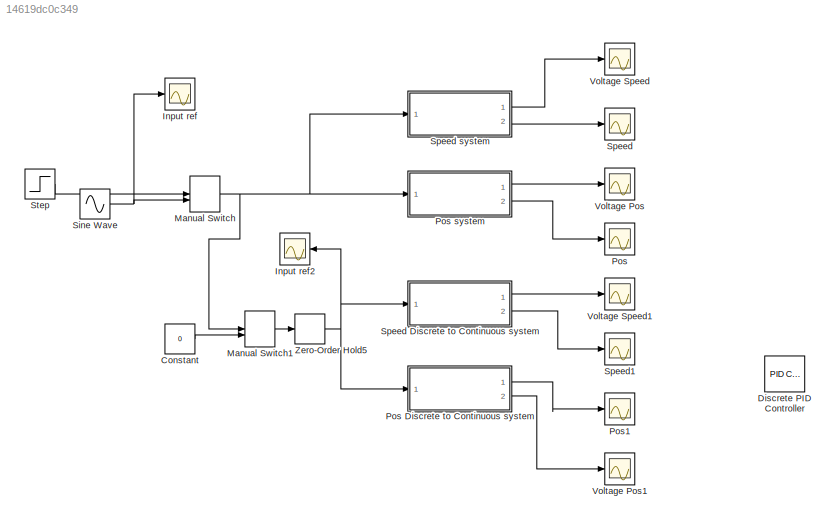
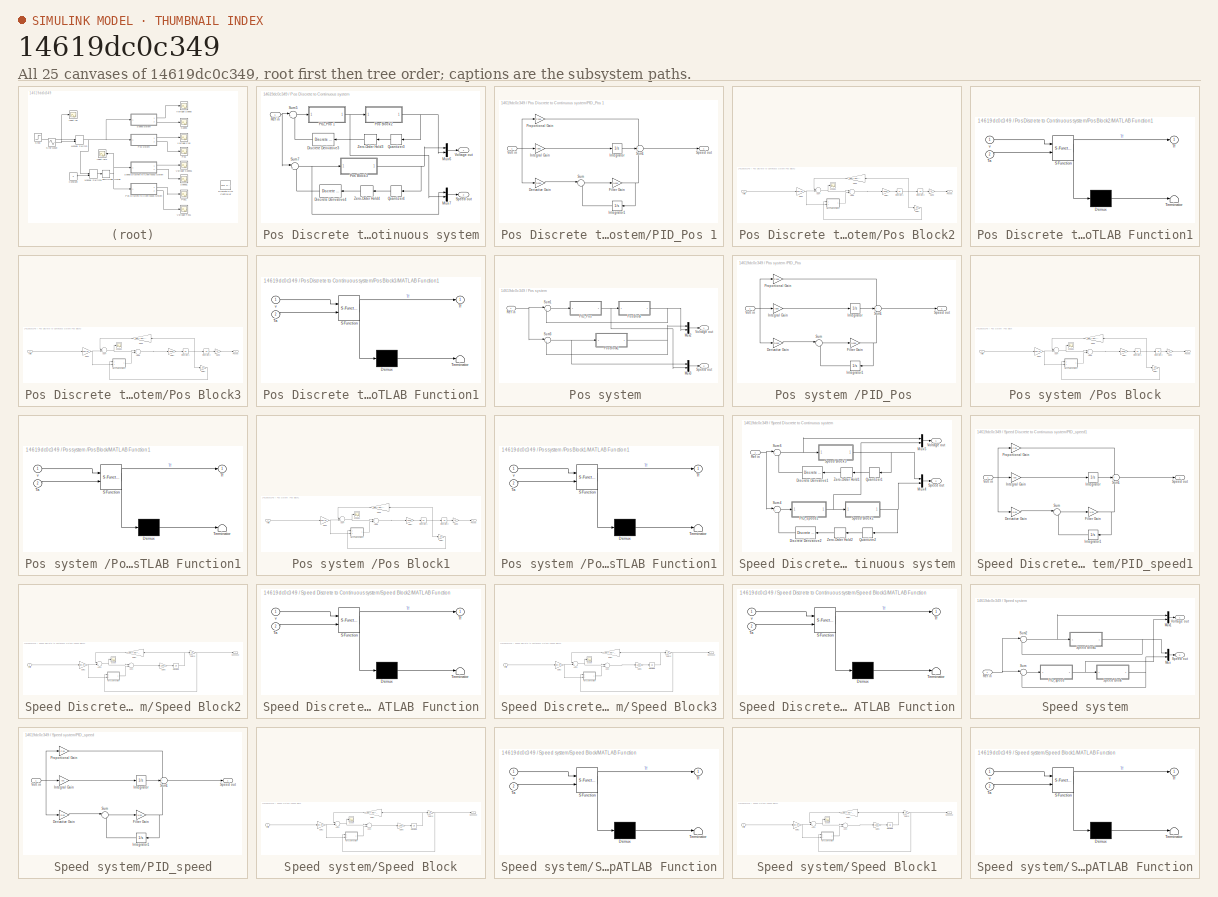
[diagram: thumbnail index - all 25 canvases of the model, root first then tree order]
MODEL slx_14619dc0c349
KIND model
CONFIG AbsTol = auto
CONFIG EnableMultiTasking = off
CONFIG FixedStep = auto
CONFIG MaxStep = auto
CONFIG MinStep = auto
CONFIG RelTol = 1e-3
CONFIG SampleTimeConstraint = Unconstrained
CONFIG Solver = VariableStepAuto
CONFIG SolverName = VariableStepAuto
CONFIG StartTime = 0.0
CONFIG StopTime = 10
BLOCK [Constant] Constant
  Value = 0
BLOCK [Reference] Discrete PID Controller  REF=simulink/Continuous/PID Controller
  Ports = [1, 1]
  SourceBlock = simulink/Continuous/PID Controller
  SourceType = PID 1dof
BLOCK [Scope] Input ref
  NumInputPorts = 1
  Ports = [1]
  ScopeSpecificationString = Simulink.scopes.TimeScopeBlockCfg('CurrentConfiguration', extmgr.ConfigurationSet(extmgr.Configuration('Core','General UI',true),extmgr.Configuration('Core','Source UI',true),extmgr.Configuration('Sources','WiredSimulink',true,'DataLoggingVariableName','ScopeData6'),extmgr.Configuration('Visuals','Time Domain',true,'SerializedDisplays',{struct('MinYLimReal','-1.38675','MaxYLimReal','12.48071','YLa...<+1402ch>
BLOCK [Scope] Input ref2
  NumInputPorts = 1
  Ports = [1]
  ScopeSpecificationString = Simulink.scopes.TimeScopeBlockCfg('CurrentConfiguration', extmgr.ConfigurationSet(extmgr.Configuration('Core','General UI',true),extmgr.Configuration('Core','Source UI',true),extmgr.Configuration('Sources','WiredSimulink',true,'DataLoggingVariableName','ScopeData12'),extmgr.Configuration('Visuals','Time Domain',true,'SerializedDisplays',{struct('MinYLimReal','-1.68572','MaxYLimReal','15.17148','YL...<+1380ch>
BLOCK [ManualSwitch] Manual Switch
  CurrentSetting = 0
BLOCK [ManualSwitch] Manual Switch1
  CurrentSetting = 0
BLOCK [Scope] Pos
  NumInputPorts = 1
  Ports = [1]
  ScopeSpecificationString = Simulink.scopes.TimeScopeBlockCfg('CurrentConfiguration', extmgr.ConfigurationSet(extmgr.Configuration('Core','General UI',true),extmgr.Configuration('Core','Source UI',true),extmgr.Configuration('Sources','WiredSimulink',true,'DataLoggingVariableName','ScopeData3'),extmgr.Configuration('Visuals','Time Domain',true,'SerializedDisplays',{struct('MinYLimReal','-0.3242','MaxYLimReal','2.91784','YLabe...<+1379ch>
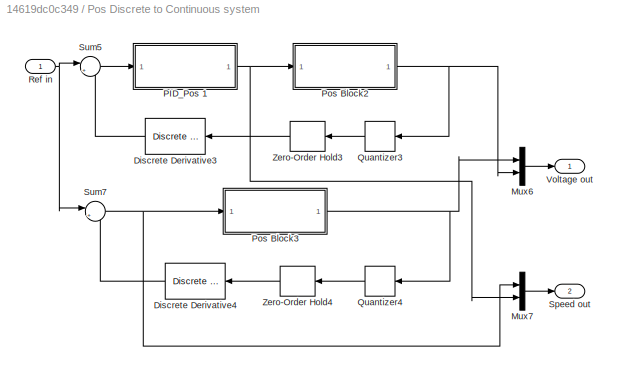
BLOCK [SubSystem] Pos Discrete to Continuous system
  Ports = [1, 2]
  RequestExecContextInheritance = off
  Variant = off
BLOCK [Reference] Pos Discrete to Continuous system/Discrete Derivative3  REF=simulink/Discrete/Discrete Derivative
  Ports = [1, 1]
  SourceBlock = simulink/Discrete/Discrete Derivative
  SourceType = Discrete Derivative
BLOCK [Reference] Pos Discrete to Continuous system/Discrete Derivative4  REF=simulink/Discrete/Discrete Derivative
  Ports = [1, 1]
  SourceBlock = simulink/Discrete/Discrete Derivative
  SourceType = Discrete Derivative
BLOCK [Mux] Pos Discrete to Continuous system/Mux6
  DisplayOption = bar
  Inputs = 2
  Ports = [2, 1]
BLOCK [Mux] Pos Discrete to Continuous system/Mux7
  DisplayOption = bar
  Inputs = 2
  Ports = [2, 1]
BLOCK [SubSystem] Pos Discrete to Continuous system/PID_Pos 1
  Ports = [1, 1]
  RequestExecContextInheritance = off
  Variant = off
BLOCK [Gain] Pos Discrete to Continuous system/PID_Pos 1/Derivative Gain
  Gain = Dpos
  OutDataTypeStr = Inherit: Inherit via internal rule
  ParamDataTypeStr = Inherit: Inherit via internal rule
  SaturateOnIntegerOverflow = off
BLOCK [Gain] Pos Discrete to Continuous system/PID_Pos 1/Filter Gain
  Gain = Npos
  OutDataTypeStr = Inherit: Inherit via internal rule
  ParamDataTypeStr = Inherit: Inherit via internal rule
  SaturateOnIntegerOverflow = off
BLOCK [Gain] Pos Discrete to Continuous system/PID_Pos 1/Integral Gain
  Gain = Ipos
  OutDataTypeStr = Inherit: Inherit via internal rule
  ParamDataTypeStr = Inherit: Inherit via internal rule
  SaturateOnIntegerOverflow = off
BLOCK [Integrator] Pos Discrete to Continuous system/PID_Pos 1/Integrator
  Ports = [1, 1]
BLOCK [Integrator] Pos Discrete to Continuous system/PID_Pos 1/Integrator1
  Ports = [1, 1]
BLOCK [Gain] Pos Discrete to Continuous system/PID_Pos 1/Proportional Gain
  Gain = Ppos
  OutDataTypeStr = Inherit: Inherit via internal rule
  ParamDataTypeStr = Inherit: Inherit via internal rule
  SaturateOnIntegerOverflow = off
BLOCK [Outport] Pos Discrete to Continuous system/PID_Pos 1/Speed out
  IconDisplay = Port number
BLOCK [Sum] Pos Discrete to Continuous system/PID_Pos 1/Sum
  IconShape = round
  InputSameDT = off
  Inputs = |+-
  OutDataTypeStr = Inherit: Inherit via internal rule
  Ports = [2, 1]
  SaturateOnIntegerOverflow = off
BLOCK [Sum] Pos Discrete to Continuous system/PID_Pos 1/Sum1
  IconShape = round
  InputSameDT = off
  Inputs = +++
  OutDataTypeStr = Inherit: Inherit via internal rule
  Ports = [3, 1]
  SaturateOnIntegerOverflow = off
BLOCK [Inport] Pos Discrete to Continuous system/PID_Pos 1/Volt in
  IconDisplay = Port number
BLOCK [SubSystem] Pos Discrete to Continuous system/Pos Block2
  Ports = [1, 1]
  RequestExecContextInheritance = off
  Variant = off
BLOCK [Sum] Pos Discrete to Continuous system/Pos Block2/Add4
  InputSameDT = off
  Inputs = -+
  OutDataTypeStr = Inherit: Inherit via internal rule
  Ports = [2, 1]
  SaturateOnIntegerOverflow = off
BLOCK [Sum] Pos Discrete to Continuous system/Pos Block2/Add5
  InputSameDT = off
  Inputs = +-
  OutDataTypeStr = Inherit: Inherit via internal rule
  Ports = [2, 1]
  SaturateOnIntegerOverflow = off
BLOCK [Gain] Pos Discrete to Continuous system/Pos Block2/Gain1
  Gain = 1/n
  OutDataTypeStr = Inherit: Inherit via internal rule
  ParamDataTypeStr = Inherit: Inherit via internal rule
  SaturateOnIntegerOverflow = off
BLOCK [Gain] Pos Discrete to Continuous system/Pos Block2/Gain4
  Gain = Km/R
  OutDataTypeStr = Inherit: Inherit via internal rule
  ParamDataTypeStr = Inherit: Inherit via internal rule
  SaturateOnIntegerOverflow = off
BLOCK [Gain] Pos Discrete to Continuous system/Pos Block2/Gain6
  Gain = dm+ Km*Kemf/R
  OutDataTypeStr = Inherit: Inherit via internal rule
  ParamDataTypeStr = Inherit: Inherit via internal rule
  SaturateOnIntegerOverflow = off
BLOCK [Gain] Pos Discrete to Continuous system/Pos Block2/Gain7
  Gain = 1/Jeq
  OutDataTypeStr = Inherit: Inherit via internal rule
  ParamDataTypeStr = Inherit: Inherit via internal rule
  SaturateOnIntegerOverflow = off
BLOCK [Gain] Pos Discrete to Continuous system/Pos Block2/Gain8
  Gain = 1/n
  OutDataTypeStr = Inherit: Inherit via internal rule
  ParamDataTypeStr = Inherit: Inherit via internal rule
  SaturateOnIntegerOverflow = off
BLOCK [Integrator] Pos Discrete to Continuous system/Pos Block2/Integrator1
  Ports = [1, 1]
BLOCK [Integrator] Pos Discrete to Continuous system/Pos Block2/Integrator2
  Ports = [1, 1]
BLOCK [SubSystem] Pos Discrete to Continuous system/Pos Block2/MATLAB Function1
  ErrorFcn = Stateflow.Translate.translate
  PermitHierarchicalResolution = ExplicitOnly
  Ports = [2, 1]
  RequestExecContextInheritance = off
  SFBlockType = MATLAB Function
  TreatAsAtomicUnit = on
  Variant = off
BLOCK [Demux] Pos Discrete to Continuous system/Pos Block2/MATLAB Function1/ Demux 
  Outputs = 1
  Ports = [1, 1]
BLOCK [S-Function] Pos Discrete to Continuous system/Pos Block2/MATLAB Function1/ SFunction 
  EnableBusSupport = on
  FunctionName = sf_sfun
  PortCounts = [2 2]
  Ports = [2, 2]
  SFcnIsStateOwnerBlock = off
  SFunctionDeploymentMode = off
  Tag = Stateflow S-Function SimLab3 5
BLOCK [Terminator] Pos Discrete to Continuous system/Pos Block2/MATLAB Function1/ Terminator 
BLOCK [Inport] Pos Discrete to Continuous system/Pos Block2/MATLAB Function1/Ta
  IconDisplay = Port number
  Port = 2
BLOCK [Outport] Pos Discrete to Continuous system/Pos Block2/MATLAB Function1/Tf
  IconDisplay = Port number
BLOCK [Inport] Pos Discrete to Continuous system/Pos Block2/MATLAB Function1/v
  IconDisplay = Port number
BLOCK [Outport] Pos Discrete to Continuous system/Pos Block2/Pos out 
  IconDisplay = Port number
BLOCK [Scope] Pos Discrete to Continuous system/Pos Block2/Scope1
  NumInputPorts = 1
  Ports = [1]
  ScopeSpecificationString = C++SS(StrPVP('SaveName','ScopeData1'),StrPVP('SaveName','ScopeData1'),StrPVP('LimitDataPoints','on'),StrPVP('DataFormat','Array'),StrPVP('Decimation','1'),StrPVP('BlockParamSampleInput','off'))  <repeated x4 — deduplicated; at blocks: Scope1>
BLOCK [Inport] Pos Discrete to Continuous system/Pos Block2/Volt in
  IconDisplay = Port number
BLOCK [SubSystem] Pos Discrete to Continuous system/Pos Block3
  Ports = [1, 1]
  RequestExecContextInheritance = off
  Variant = off
BLOCK [Sum] Pos Discrete to Continuous system/Pos Block3/Add4
  InputSameDT = off
  Inputs = -+
  OutDataTypeStr = Inherit: Inherit via internal rule
  Ports = [2, 1]
  SaturateOnIntegerOverflow = off
BLOCK [Sum] Pos Discrete to Continuous system/Pos Block3/Add5
  InputSameDT = off
  Inputs = +-
  OutDataTypeStr = Inherit: Inherit via internal rule
  Ports = [2, 1]
  SaturateOnIntegerOverflow = off
BLOCK [Gain] Pos Discrete to Continuous system/Pos Block3/Gain1
  Gain = 1/n
  OutDataTypeStr = Inherit: Inherit via internal rule
  ParamDataTypeStr = Inherit: Inherit via internal rule
  SaturateOnIntegerOverflow = off
BLOCK [Gain] Pos Discrete to Continuous system/Pos Block3/Gain4
  Gain = Km/R
  OutDataTypeStr = Inherit: Inherit via internal rule
  ParamDataTypeStr = Inherit: Inherit via internal rule
  SaturateOnIntegerOverflow = off
BLOCK [Gain] Pos Discrete to Continuous system/Pos Block3/Gain6
  Gain = dm+ Km*Kemf/R
  OutDataTypeStr = Inherit: Inherit via internal rule
  ParamDataTypeStr = Inherit: Inherit via internal rule
  SaturateOnIntegerOverflow = off
BLOCK [Gain] Pos Discrete to Continuous system/Pos Block3/Gain7
  Gain = 1/Jeq
  OutDataTypeStr = Inherit: Inherit via internal rule
  ParamDataTypeStr = Inherit: Inherit via internal rule
  SaturateOnIntegerOverflow = off
BLOCK [Gain] Pos Discrete to Continuous system/Pos Block3/Gain8
  Gain = 1/n
  OutDataTypeStr = Inherit: Inherit via internal rule
  ParamDataTypeStr = Inherit: Inherit via internal rule
  SaturateOnIntegerOverflow = off
BLOCK [Integrator] Pos Discrete to Continuous system/Pos Block3/Integrator1
  Ports = [1, 1]
BLOCK [Integrator] Pos Discrete to Continuous system/Pos Block3/Integrator2
  Ports = [1, 1]
BLOCK [SubSystem] Pos Discrete to Continuous system/Pos Block3/MATLAB Function1
  ErrorFcn = Stateflow.Translate.translate
  PermitHierarchicalResolution = ExplicitOnly
  Ports = [2, 1]
  RequestExecContextInheritance = off
  SFBlockType = MATLAB Function
  TreatAsAtomicUnit = on
  Variant = off
BLOCK [Demux] Pos Discrete to Continuous system/Pos Block3/MATLAB Function1/ Demux 
  Outputs = 1
  Ports = [1, 1]
BLOCK [S-Function] Pos Discrete to Continuous system/Pos Block3/MATLAB Function1/ SFunction 
  EnableBusSupport = on
  FunctionName = sf_sfun
  PortCounts = [2 2]
  Ports = [2, 2]
  SFcnIsStateOwnerBlock = off
  SFunctionDeploymentMode = off
  Tag = Stateflow S-Function SimLab3 6
BLOCK [Terminator] Pos Discrete to Continuous system/Pos Block3/MATLAB Function1/ Terminator 
BLOCK [Inport] Pos Discrete to Continuous system/Pos Block3/MATLAB Function1/Ta
  IconDisplay = Port number
  Port = 2
BLOCK [Outport] Pos Discrete to Continuous system/Pos Block3/MATLAB Function1/Tf
  IconDisplay = Port number
BLOCK [Inport] Pos Discrete to Continuous system/Pos Block3/MATLAB Function1/v
  IconDisplay = Port number
BLOCK [Outport] Pos Discrete to Continuous system/Pos Block3/Pos out 
  IconDisplay = Port number
BLOCK [Scope] Pos Discrete to Continuous system/Pos Block3/Scope1
  NumInputPorts = 1
  Ports = [1]
BLOCK [Inport] Pos Discrete to Continuous system/Pos Block3/Volt in
  IconDisplay = Port number
BLOCK [Quantizer] Pos Discrete to Continuous system/Quantizer3
  LinearizeAsGain = off
  QuantizationInterval = Pulses
  SampleTime = Ts
BLOCK [Quantizer] Pos Discrete to Continuous system/Quantizer4
  LinearizeAsGain = off
  QuantizationInterval = Pulses
  SampleTime = Ts
BLOCK [Inport] Pos Discrete to Continuous system/Ref in
  IconDisplay = Port number
BLOCK [Outport] Pos Discrete to Continuous system/Speed out
  IconDisplay = Port number
  Port = 2
BLOCK [Sum] Pos Discrete to Continuous system/Sum5
  IconShape = round
  InputSameDT = off
  Inputs = |++
  OutDataTypeStr = Inherit: Inherit via internal rule
  Ports = [2, 1]
  SaturateOnIntegerOverflow = off
BLOCK [Sum] Pos Discrete to Continuous system/Sum7
  IconShape = round
  InputSameDT = off
  Inputs = |++
  OutDataTypeStr = Inherit: Inherit via internal rule
  Ports = [2, 1]
  SaturateOnIntegerOverflow = off
BLOCK [Outport] Pos Discrete to Continuous system/Voltage out
  IconDisplay = Port number
BLOCK [ZeroOrderHold] Pos Discrete to Continuous system/Zero-Order Hold3
  SampleTime = Ts
BLOCK [ZeroOrderHold] Pos Discrete to Continuous system/Zero-Order Hold4
  SampleTime = Ts
BLOCK [SubSystem] Pos system 
  Ports = [1, 2]
  RequestExecContextInheritance = off
  Variant = off
BLOCK [Mux] Pos system /Mux2
  DisplayOption = bar
  Inputs = 2
  Ports = [2, 1]
BLOCK [Mux] Pos system /Mux3
  DisplayOption = bar
  Inputs = 2
  Ports = [2, 1]
BLOCK [SubSystem] Pos system /PID_Pos 
  Ports = [1, 1]
  RequestExecContextInheritance = off
  Variant = off
BLOCK [Gain] Pos system /PID_Pos /Derivative Gain
  Gain = Dpos
  OutDataTypeStr = Inherit: Inherit via internal rule
  ParamDataTypeStr = Inherit: Inherit via internal rule
  SaturateOnIntegerOverflow = off
BLOCK [Gain] Pos system /PID_Pos /Filter Gain
  Gain = Npos
  OutDataTypeStr = Inherit: Inherit via internal rule
  ParamDataTypeStr = Inherit: Inherit via internal rule
  SaturateOnIntegerOverflow = off
BLOCK [Gain] Pos system /PID_Pos /Integral Gain
  Gain = Ipos
  OutDataTypeStr = Inherit: Inherit via internal rule
  ParamDataTypeStr = Inherit: Inherit via internal rule
  SaturateOnIntegerOverflow = off
BLOCK [Integrator] Pos system /PID_Pos /Integrator
  Ports = [1, 1]
BLOCK [Integrator] Pos system /PID_Pos /Integrator1
  Ports = [1, 1]
BLOCK [Gain] Pos system /PID_Pos /Proportional Gain
  Gain = Ppos
  OutDataTypeStr = Inherit: Inherit via internal rule
  ParamDataTypeStr = Inherit: Inherit via internal rule
  SaturateOnIntegerOverflow = off
BLOCK [Outport] Pos system /PID_Pos /Speed out
  IconDisplay = Port number
BLOCK [Sum] Pos system /PID_Pos /Sum
  IconShape = round
  InputSameDT = off
  Inputs = |+-
  OutDataTypeStr = Inherit: Inherit via internal rule
  Ports = [2, 1]
  SaturateOnIntegerOverflow = off
BLOCK [Sum] Pos system /PID_Pos /Sum1
  IconShape = round
  InputSameDT = off
  Inputs = +++
  OutDataTypeStr = Inherit: Inherit via internal rule
  Ports = [3, 1]
  SaturateOnIntegerOverflow = off
BLOCK [Inport] Pos system /PID_Pos /Volt in
  IconDisplay = Port number
BLOCK [SubSystem] Pos system /Pos Block
  Ports = [1, 1]
  RequestExecContextInheritance = off
  Variant = off
BLOCK [Sum] Pos system /Pos Block/Add4
  InputSameDT = off
  Inputs = -+
  OutDataTypeStr = Inherit: Inherit via internal rule
  Ports = [2, 1]
  SaturateOnIntegerOverflow = off
BLOCK [Sum] Pos system /Pos Block/Add5
  InputSameDT = off
  Inputs = +-
  OutDataTypeStr = Inherit: Inherit via internal rule
  Ports = [2, 1]
  SaturateOnIntegerOverflow = off
BLOCK [Gain] Pos system /Pos Block/Gain1
  Gain = 1/n
  OutDataTypeStr = Inherit: Inherit via internal rule
  ParamDataTypeStr = Inherit: Inherit via internal rule
  SaturateOnIntegerOverflow = off
BLOCK [Gain] Pos system /Pos Block/Gain4
  Gain = Km/R
  OutDataTypeStr = Inherit: Inherit via internal rule
  ParamDataTypeStr = Inherit: Inherit via internal rule
  SaturateOnIntegerOverflow = off
BLOCK [Gain] Pos system /Pos Block/Gain6
  Gain = dm+ Km*Kemf/R
  OutDataTypeStr = Inherit: Inherit via internal rule
  ParamDataTypeStr = Inherit: Inherit via internal rule
  SaturateOnIntegerOverflow = off
BLOCK [Gain] Pos system /Pos Block/Gain7
  Gain = 1/Jeq
  OutDataTypeStr = Inherit: Inherit via internal rule
  ParamDataTypeStr = Inherit: Inherit via internal rule
  SaturateOnIntegerOverflow = off
BLOCK [Gain] Pos system /Pos Block/Gain8
  Gain = 1/n
  OutDataTypeStr = Inherit: Inherit via internal rule
  ParamDataTypeStr = Inherit: Inherit via internal rule
  SaturateOnIntegerOverflow = off
BLOCK [Integrator] Pos system /Pos Block/Integrator1
  Ports = [1, 1]
BLOCK [Integrator] Pos system /Pos Block/Integrator2
  Ports = [1, 1]
BLOCK [SubSystem] Pos system /Pos Block/MATLAB Function1
  ErrorFcn = Stateflow.Translate.translate
  PermitHierarchicalResolution = ExplicitOnly
  Ports = [2, 1]
  RequestExecContextInheritance = off
  SFBlockType = MATLAB Function
  TreatAsAtomicUnit = on
  Variant = off
BLOCK [Demux] Pos system /Pos Block/MATLAB Function1/ Demux 
  Outputs = 1
  Ports = [1, 1]
BLOCK [S-Function] Pos system /Pos Block/MATLAB Function1/ SFunction 
  EnableBusSupport = on
  FunctionName = sf_sfun
  PortCounts = [2 2]
  Ports = [2, 2]
  SFcnIsStateOwnerBlock = off
  SFunctionDeploymentMode = off
  Tag = Stateflow S-Function SimLab3 1
BLOCK [Terminator] Pos system /Pos Block/MATLAB Function1/ Terminator 
BLOCK [Inport] Pos system /Pos Block/MATLAB Function1/Ta
  IconDisplay = Port number
  Port = 2
BLOCK [Outport] Pos system /Pos Block/MATLAB Function1/Tf
  IconDisplay = Port number
BLOCK [Inport] Pos system /Pos Block/MATLAB Function1/v
  IconDisplay = Port number
BLOCK [Outport] Pos system /Pos Block/Pos out 
  IconDisplay = Port number
BLOCK [Scope] Pos system /Pos Block/Scope1
  NumInputPorts = 1
  Ports = [1]
BLOCK [Inport] Pos system /Pos Block/Volt in
  IconDisplay = Port number
BLOCK [SubSystem] Pos system /Pos Block1
  Ports = [1, 1]
  RequestExecContextInheritance = off
  Variant = off
BLOCK [Sum] Pos system /Pos Block1/Add4
  InputSameDT = off
  Inputs = -+
  OutDataTypeStr = Inherit: Inherit via internal rule
  Ports = [2, 1]
  SaturateOnIntegerOverflow = off
BLOCK [Sum] Pos system /Pos Block1/Add5
  InputSameDT = off
  Inputs = +-
  OutDataTypeStr = Inherit: Inherit via internal rule
  Ports = [2, 1]
  SaturateOnIntegerOverflow = off
BLOCK [Gain] Pos system /Pos Block1/Gain1
  Gain = 1/n
  OutDataTypeStr = Inherit: Inherit via internal rule
  ParamDataTypeStr = Inherit: Inherit via internal rule
  SaturateOnIntegerOverflow = off
BLOCK [Gain] Pos system /Pos Block1/Gain4
  Gain = Km/R
  OutDataTypeStr = Inherit: Inherit via internal rule
  ParamDataTypeStr = Inherit: Inherit via internal rule
  SaturateOnIntegerOverflow = off
BLOCK [Gain] Pos system /Pos Block1/Gain6
  Gain = dm+ Km*Kemf/R
  OutDataTypeStr = Inherit: Inherit via internal rule
  ParamDataTypeStr = Inherit: Inherit via internal rule
  SaturateOnIntegerOverflow = off
BLOCK [Gain] Pos system /Pos Block1/Gain7
  Gain = 1/Jeq
  OutDataTypeStr = Inherit: Inherit via internal rule
  ParamDataTypeStr = Inherit: Inherit via internal rule
  SaturateOnIntegerOverflow = off
BLOCK [Gain] Pos system /Pos Block1/Gain8
  Gain = 1/n
  OutDataTypeStr = Inherit: Inherit via internal rule
  ParamDataTypeStr = Inherit: Inherit via internal rule
  SaturateOnIntegerOverflow = off
BLOCK [Integrator] Pos system /Pos Block1/Integrator1
  Ports = [1, 1]
BLOCK [Integrator] Pos system /Pos Block1/Integrator2
  Ports = [1, 1]
BLOCK [SubSystem] Pos system /Pos Block1/MATLAB Function1
  ErrorFcn = Stateflow.Translate.translate
  PermitHierarchicalResolution = ExplicitOnly
  Ports = [2, 1]
  RequestExecContextInheritance = off
  SFBlockType = MATLAB Function
  TreatAsAtomicUnit = on
  Variant = off
BLOCK [Demux] Pos system /Pos Block1/MATLAB Function1/ Demux 
  Outputs = 1
  Ports = [1, 1]
BLOCK [S-Function] Pos system /Pos Block1/MATLAB Function1/ SFunction 
  EnableBusSupport = on
  FunctionName = sf_sfun
  PortCounts = [2 2]
  Ports = [2, 2]
  SFcnIsStateOwnerBlock = off
  SFunctionDeploymentMode = off
  Tag = Stateflow S-Function SimLab3 4
BLOCK [Terminator] Pos system /Pos Block1/MATLAB Function1/ Terminator 
BLOCK [Inport] Pos system /Pos Block1/MATLAB Function1/Ta
  IconDisplay = Port number
  Port = 2
BLOCK [Outport] Pos system /Pos Block1/MATLAB Function1/Tf
  IconDisplay = Port number
BLOCK [Inport] Pos system /Pos Block1/MATLAB Function1/v
  IconDisplay = Port number
BLOCK [Outport] Pos system /Pos Block1/Pos out 
  IconDisplay = Port number
BLOCK [Scope] Pos system /Pos Block1/Scope1
  NumInputPorts = 1
  Ports = [1]
BLOCK [Inport] Pos system /Pos Block1/Volt in
  IconDisplay = Port number
BLOCK [Inport] Pos system /Ref in
  IconDisplay = Port number
BLOCK [Outport] Pos system /Speed out
  IconDisplay = Port number
  Port = 2
BLOCK [Sum] Pos system /Sum1
  IconShape = round
  InputSameDT = off
  Inputs = |++
  OutDataTypeStr = Inherit: Inherit via internal rule
  Ports = [2, 1]
  SaturateOnIntegerOverflow = off
BLOCK [Sum] Pos system /Sum3
  IconShape = round
  InputSameDT = off
  Inputs = |++
  OutDataTypeStr = Inherit: Inherit via internal rule
  Ports = [2, 1]
  SaturateOnIntegerOverflow = off
BLOCK [Outport] Pos system /Voltage out
  IconDisplay = Port number
BLOCK [Scope] Pos1
  NumInputPorts = 1
  Ports = [1]
  ScopeSpecificationString = Simulink.scopes.TimeScopeBlockCfg('CurrentConfiguration', extmgr.ConfigurationSet(extmgr.Configuration('Core','General UI',true),extmgr.Configuration('Core','Source UI',true),extmgr.Configuration('Sources','WiredSimulink',true,'DataLoggingVariableName','ScopeData8'),extmgr.Configuration('Visuals','Time Domain',true,'SerializedDisplays',{struct('MinYLimReal','-19817594687.46274','MaxYLimReal','1783...<+1459ch>
BLOCK [Sin] Sine Wave
  Amplitude = Amplitude
  Frequency = Freq*10
  Ports = [0, 1]
  SampleTime = 0
BLOCK [Scope] Speed
  NumInputPorts = 1
  Ports = [1]
  ScopeSpecificationString = Simulink.scopes.TimeScopeBlockCfg('CurrentConfiguration', extmgr.ConfigurationSet(extmgr.Configuration('Core','General UI',true),extmgr.Configuration('Core','Source UI',true),extmgr.Configuration('Sources','WiredSimulink',true),extmgr.Configuration('Visuals','Time Domain',true,'SerializedDisplays',{struct('MinYLimReal','-2.652','MaxYLimReal','23.86797','YLabelReal','','MinYLimMag','0.00000','MaxYL...<+1395ch>
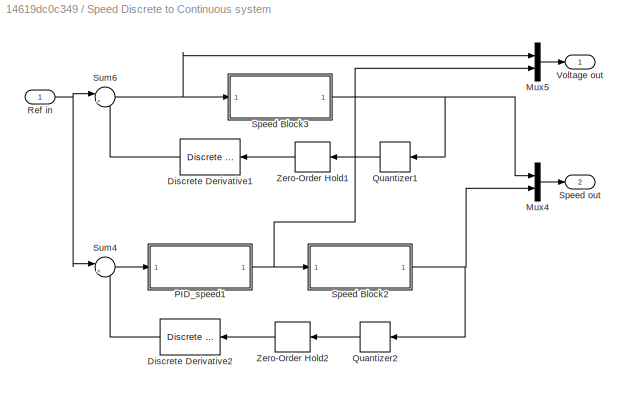
BLOCK [SubSystem] Speed Discrete to Continuous system
  Ports = [1, 2]
  RequestExecContextInheritance = off
  Variant = off
BLOCK [Reference] Speed Discrete to Continuous system/Discrete Derivative1  REF=simulink/Discrete/Discrete Derivative
  Ports = [1, 1]
  SourceBlock = simulink/Discrete/Discrete Derivative
  SourceType = Discrete Derivative
BLOCK [Reference] Speed Discrete to Continuous system/Discrete Derivative2  REF=simulink/Discrete/Discrete Derivative
  Ports = [1, 1]
  SourceBlock = simulink/Discrete/Discrete Derivative
  SourceType = Discrete Derivative
BLOCK [Mux] Speed Discrete to Continuous system/Mux4
  DisplayOption = bar
  Inputs = 2
  Ports = [2, 1]
BLOCK [Mux] Speed Discrete to Continuous system/Mux5
  DisplayOption = bar
  Inputs = 2
  Ports = [2, 1]
BLOCK [SubSystem] Speed Discrete to Continuous system/PID_speed1
  Ports = [1, 1]
  RequestExecContextInheritance = off
  Variant = off
BLOCK [Gain] Speed Discrete to Continuous system/PID_speed1/Derivative Gain
  Gain = Dsp
  OutDataTypeStr = Inherit: Inherit via internal rule
  ParamDataTypeStr = Inherit: Inherit via internal rule
  SaturateOnIntegerOverflow = off
BLOCK [Gain] Speed Discrete to Continuous system/PID_speed1/Filter Gain
  Gain = Nsp
  OutDataTypeStr = Inherit: Inherit via internal rule
  ParamDataTypeStr = Inherit: Inherit via internal rule
  SaturateOnIntegerOverflow = off
BLOCK [Gain] Speed Discrete to Continuous system/PID_speed1/Integral Gain
  Gain = Isp
  OutDataTypeStr = Inherit: Inherit via internal rule
  ParamDataTypeStr = Inherit: Inherit via internal rule
  SaturateOnIntegerOverflow = off
BLOCK [Integrator] Speed Discrete to Continuous system/PID_speed1/Integrator
  Ports = [1, 1]
BLOCK [Integrator] Speed Discrete to Continuous system/PID_speed1/Integrator1
  Ports = [1, 1]
BLOCK [Gain] Speed Discrete to Continuous system/PID_speed1/Proportional Gain
  Gain = Psp
  OutDataTypeStr = Inherit: Inherit via internal rule
  ParamDataTypeStr = Inherit: Inherit via internal rule
  SaturateOnIntegerOverflow = off
BLOCK [Outport] Speed Discrete to Continuous system/PID_speed1/Speed out
  IconDisplay = Port number
BLOCK [Sum] Speed Discrete to Continuous system/PID_speed1/Sum
  IconShape = round
  InputSameDT = off
  Inputs = |+-
  OutDataTypeStr = Inherit: Inherit via internal rule
  Ports = [2, 1]
  SaturateOnIntegerOverflow = off
BLOCK [Sum] Speed Discrete to Continuous system/PID_speed1/Sum1
  IconShape = round
  InputSameDT = off
  Inputs = +++
  OutDataTypeStr = Inherit: Inherit via internal rule
  Ports = [3, 1]
  SaturateOnIntegerOverflow = off
BLOCK [Inport] Speed Discrete to Continuous system/PID_speed1/Volt in
  IconDisplay = Port number
BLOCK [Quantizer] Speed Discrete to Continuous system/Quantizer1
  LinearizeAsGain = off
  QuantizationInterval = Pulses
  SampleTime = Ts
BLOCK [Quantizer] Speed Discrete to Continuous system/Quantizer2
  LinearizeAsGain = off
  QuantizationInterval = Pulses
  SampleTime = Ts
BLOCK [Inport] Speed Discrete to Continuous system/Ref in
  IconDisplay = Port number
BLOCK [SubSystem] Speed Discrete to Continuous system/Speed Block2
  Ports = [1, 1]
  RequestExecContextInheritance = off
  Variant = off
BLOCK [Sum] Speed Discrete to Continuous system/Speed Block2/Add2
  InputSameDT = off
  Inputs = -+
  OutDataTypeStr = Inherit: Inherit via internal rule
  Ports = [2, 1]
  SaturateOnIntegerOverflow = off
BLOCK [Sum] Speed Discrete to Continuous system/Speed Block2/Add3
  InputSameDT = off
  Inputs = +-
  OutDataTypeStr = Inherit: Inherit via internal rule
  Ports = [2, 1]
  SaturateOnIntegerOverflow = off
BLOCK [Gain] Speed Discrete to Continuous system/Speed Block2/Gain10
  Gain = 1/n
  OutDataTypeStr = Inherit: Inherit via internal rule
  ParamDataTypeStr = Inherit: Inherit via internal rule
  SaturateOnIntegerOverflow = off
BLOCK [Gain] Speed Discrete to Continuous system/Speed Block2/Gain2
  Gain = Km/R
  OutDataTypeStr = Inherit: Inherit via internal rule
  ParamDataTypeStr = Inherit: Inherit via internal rule
  SaturateOnIntegerOverflow = off
BLOCK [Gain] Speed Discrete to Continuous system/Speed Block2/Gain3
  Gain = dm+ Km*Kemf/R
  OutDataTypeStr = Inherit: Inherit via internal rule
  ParamDataTypeStr = Inherit: Inherit via internal rule
  SaturateOnIntegerOverflow = off
BLOCK [Gain] Speed Discrete to Continuous system/Speed Block2/Gain5
  Gain = 1/Jeq
  OutDataTypeStr = Inherit: Inherit via internal rule
  ParamDataTypeStr = Inherit: Inherit via internal rule
  SaturateOnIntegerOverflow = off
BLOCK [Integrator] Speed Discrete to Continuous system/Speed Block2/Integrator3
  Ports = [1, 1]
BLOCK [SubSystem] Speed Discrete to Continuous system/Speed Block2/MATLAB Function
  ErrorFcn = Stateflow.Translate.translate
  PermitHierarchicalResolution = ExplicitOnly
  Ports = [2, 1]
  RequestExecContextInheritance = off
  SFBlockType = MATLAB Function
  TreatAsAtomicUnit = on
  Variant = off
BLOCK [Demux] Speed Discrete to Continuous system/Speed Block2/MATLAB Function/ Demux 
  Outputs = 1
  Ports = [1, 1]
BLOCK [S-Function] Speed Discrete to Continuous system/Speed Block2/MATLAB Function/ SFunction 
  EnableBusSupport = on
  FunctionName = sf_sfun
  PortCounts = [2 2]
  Ports = [2, 2]
  SFcnIsStateOwnerBlock = off
  SFunctionDeploymentMode = off
  Tag = Stateflow S-Function SimLab3 7
BLOCK [Terminator] Speed Discrete to Continuous system/Speed Block2/MATLAB Function/ Terminator 
BLOCK [Inport] Speed Discrete to Continuous system/Speed Block2/MATLAB Function/Ta
  IconDisplay = Port number
  Port = 2
BLOCK [Outport] Speed Discrete to Continuous system/Speed Block2/MATLAB Function/Tf
  IconDisplay = Port number
BLOCK [Inport] Speed Discrete to Continuous system/Speed Block2/MATLAB Function/v
  IconDisplay = Port number
BLOCK [Scope] Speed Discrete to Continuous system/Speed Block2/Scope
  NumInputPorts = 1
  Ports = [1]
  ScopeSpecificationString = C++SS(StrPVP('SaveName','ScopeData2'),StrPVP('LimitDataPoints','on'),StrPVP('DataFormat','Array'),StrPVP('Decimation','1'),StrPVP('BlockParamSampleInput','off'))
BLOCK [Outport] Speed Discrete to Continuous system/Speed Block2/Speed out
  IconDisplay = Port number
BLOCK [Inport] Speed Discrete to Continuous system/Speed Block2/Volt in
  IconDisplay = Port number
BLOCK [SubSystem] Speed Discrete to Continuous system/Speed Block3
  Ports = [1, 1]
  RequestExecContextInheritance = off
  Variant = off
BLOCK [Sum] Speed Discrete to Continuous system/Speed Block3/Add2
  InputSameDT = off
  Inputs = -+
  OutDataTypeStr = Inherit: Inherit via internal rule
  Ports = [2, 1]
  SaturateOnIntegerOverflow = off
BLOCK [Sum] Speed Discrete to Continuous system/Speed Block3/Add3
  InputSameDT = off
  Inputs = +-
  OutDataTypeStr = Inherit: Inherit via internal rule
  Ports = [2, 1]
  SaturateOnIntegerOverflow = off
BLOCK [Gain] Speed Discrete to Continuous system/Speed Block3/Gain10
  Gain = 1/n
  OutDataTypeStr = Inherit: Inherit via internal rule
  ParamDataTypeStr = Inherit: Inherit via internal rule
  SaturateOnIntegerOverflow = off
BLOCK [Gain] Speed Discrete to Continuous system/Speed Block3/Gain2
  Gain = Km/R
  OutDataTypeStr = Inherit: Inherit via internal rule
  ParamDataTypeStr = Inherit: Inherit via internal rule
  SaturateOnIntegerOverflow = off
BLOCK [Gain] Speed Discrete to Continuous system/Speed Block3/Gain3
  Gain = dm+ Km*Kemf/R
  OutDataTypeStr = Inherit: Inherit via internal rule
  ParamDataTypeStr = Inherit: Inherit via internal rule
  SaturateOnIntegerOverflow = off
BLOCK [Gain] Speed Discrete to Continuous system/Speed Block3/Gain5
  Gain = 1/Jeq
  OutDataTypeStr = Inherit: Inherit via internal rule
  ParamDataTypeStr = Inherit: Inherit via internal rule
  SaturateOnIntegerOverflow = off
BLOCK [Integrator] Speed Discrete to Continuous system/Speed Block3/Integrator3
  Ports = [1, 1]
BLOCK [SubSystem] Speed Discrete to Continuous system/Speed Block3/MATLAB Function
  ErrorFcn = Stateflow.Translate.translate
  PermitHierarchicalResolution = ExplicitOnly
  Ports = [2, 1]
  RequestExecContextInheritance = off
  SFBlockType = MATLAB Function
  TreatAsAtomicUnit = on
  Variant = off
BLOCK [Demux] Speed Discrete to Continuous system/Speed Block3/MATLAB Function/ Demux 
  Outputs = 1
  Ports = [1, 1]
BLOCK [S-Function] Speed Discrete to Continuous system/Speed Block3/MATLAB Function/ SFunction 
  EnableBusSupport = on
  FunctionName = sf_sfun
  PortCounts = [2 2]
  Ports = [2, 2]
  SFcnIsStateOwnerBlock = off
  SFunctionDeploymentMode = off
  Tag = Stateflow S-Function SimLab3 8
BLOCK [Terminator] Speed Discrete to Continuous system/Speed Block3/MATLAB Function/ Terminator 
BLOCK [Inport] Speed Discrete to Continuous system/Speed Block3/MATLAB Function/Ta
  IconDisplay = Port number
  Port = 2
BLOCK [Outport] Speed Discrete to Continuous system/Speed Block3/MATLAB Function/Tf
  IconDisplay = Port number
BLOCK [Inport] Speed Discrete to Continuous system/Speed Block3/MATLAB Function/v
  IconDisplay = Port number
BLOCK [Scope] Speed Discrete to Continuous system/Speed Block3/Scope
  NumInputPorts = 1
  Ports = [1]
  ScopeSpecificationString = C++SS(StrPVP('SaveName','ScopeData2'),StrPVP('LimitDataPoints','on'),StrPVP('DataFormat','Array'),StrPVP('Decimation','1'),StrPVP('BlockParamSampleInput','off'))
BLOCK [Outport] Speed Discrete to Continuous system/Speed Block3/Speed out
  IconDisplay = Port number
BLOCK [Inport] Speed Discrete to Continuous system/Speed Block3/Volt in
  IconDisplay = Port number
BLOCK [Outport] Speed Discrete to Continuous system/Speed out
  IconDisplay = Port number
  Port = 2
BLOCK [Sum] Speed Discrete to Continuous system/Sum4
  IconShape = round
  InputSameDT = off
  Inputs = |+-
  OutDataTypeStr = Inherit: Inherit via internal rule
  Ports = [2, 1]
  SaturateOnIntegerOverflow = off
BLOCK [Sum] Speed Discrete to Continuous system/Sum6
  IconShape = round
  InputSameDT = off
  Inputs = |+-
  OutDataTypeStr = Inherit: Inherit via internal rule
  Ports = [2, 1]
  SaturateOnIntegerOverflow = off
BLOCK [Outport] Speed Discrete to Continuous system/Voltage out
  IconDisplay = Port number
BLOCK [ZeroOrderHold] Speed Discrete to Continuous system/Zero-Order Hold1
  SampleTime = Ts
BLOCK [ZeroOrderHold] Speed Discrete to Continuous system/Zero-Order Hold2
  SampleTime = Ts
BLOCK [SubSystem] Speed system
  Ports = [1, 2]
  RequestExecContextInheritance = off
  Variant = off
BLOCK [Mux] Speed system/Mux
  DisplayOption = bar
  Inputs = 2
  Ports = [2, 1]
BLOCK [Mux] Speed system/Mux1
  DisplayOption = bar
  Inputs = 2
  Ports = [2, 1]
BLOCK [SubSystem] Speed system/PID_speed
  Ports = [1, 1]
  RequestExecContextInheritance = off
  Variant = off
BLOCK [Gain] Speed system/PID_speed/Derivative Gain
  Gain = Dsp
  OutDataTypeStr = Inherit: Inherit via internal rule
  ParamDataTypeStr = Inherit: Inherit via internal rule
  SaturateOnIntegerOverflow = off
BLOCK [Gain] Speed system/PID_speed/Filter Gain
  Gain = Nsp
  OutDataTypeStr = Inherit: Inherit via internal rule
  ParamDataTypeStr = Inherit: Inherit via internal rule
  SaturateOnIntegerOverflow = off
BLOCK [Gain] Speed system/PID_speed/Integral Gain
  Gain = Isp
  OutDataTypeStr = Inherit: Inherit via internal rule
  ParamDataTypeStr = Inherit: Inherit via internal rule
  SaturateOnIntegerOverflow = off
BLOCK [Integrator] Speed system/PID_speed/Integrator
  Ports = [1, 1]
BLOCK [Integrator] Speed system/PID_speed/Integrator1
  Ports = [1, 1]
BLOCK [Gain] Speed system/PID_speed/Proportional Gain
  Gain = Psp
  OutDataTypeStr = Inherit: Inherit via internal rule
  ParamDataTypeStr = Inherit: Inherit via internal rule
  SaturateOnIntegerOverflow = off
BLOCK [Outport] Speed system/PID_speed/Speed out
  IconDisplay = Port number
BLOCK [Sum] Speed system/PID_speed/Sum
  IconShape = round
  InputSameDT = off
  Inputs = |+-
  OutDataTypeStr = Inherit: Inherit via internal rule
  Ports = [2, 1]
  SaturateOnIntegerOverflow = off
BLOCK [Sum] Speed system/PID_speed/Sum1
  IconShape = round
  InputSameDT = off
  Inputs = +++
  OutDataTypeStr = Inherit: Inherit via internal rule
  Ports = [3, 1]
  SaturateOnIntegerOverflow = off
BLOCK [Inport] Speed system/PID_speed/Volt in
  IconDisplay = Port number
BLOCK [Inport] Speed system/Ref in
  IconDisplay = Port number
BLOCK [SubSystem] Speed system/Speed Block
  Ports = [1, 1]
  RequestExecContextInheritance = off
  Variant = off
BLOCK [Sum] Speed system/Speed Block/Add2
  InputSameDT = off
  Inputs = -+
  OutDataTypeStr = Inherit: Inherit via internal rule
  Ports = [2, 1]
  SaturateOnIntegerOverflow = off
BLOCK [Sum] Speed system/Speed Block/Add3
  InputSameDT = off
  Inputs = +-
  OutDataTypeStr = Inherit: Inherit via internal rule
  Ports = [2, 1]
  SaturateOnIntegerOverflow = off
BLOCK [Gain] Speed system/Speed Block/Gain10
  Gain = 1/n
  OutDataTypeStr = Inherit: Inherit via internal rule
  ParamDataTypeStr = Inherit: Inherit via internal rule
  SaturateOnIntegerOverflow = off
BLOCK [Gain] Speed system/Speed Block/Gain2
  Gain = Km/R
  OutDataTypeStr = Inherit: Inherit via internal rule
  ParamDataTypeStr = Inherit: Inherit via internal rule
  SaturateOnIntegerOverflow = off
BLOCK [Gain] Speed system/Speed Block/Gain3
  Gain = dm+ Km*Kemf/R
  OutDataTypeStr = Inherit: Inherit via internal rule
  ParamDataTypeStr = Inherit: Inherit via internal rule
  SaturateOnIntegerOverflow = off
BLOCK [Gain] Speed system/Speed Block/Gain5
  Gain = 1/Jeq
  OutDataTypeStr = Inherit: Inherit via internal rule
  ParamDataTypeStr = Inherit: Inherit via internal rule
  SaturateOnIntegerOverflow = off
BLOCK [Integrator] Speed system/Speed Block/Integrator3
  Ports = [1, 1]
BLOCK [SubSystem] Speed system/Speed Block/MATLAB Function
  ErrorFcn = Stateflow.Translate.translate
  PermitHierarchicalResolution = ExplicitOnly
  Ports = [2, 1]
  RequestExecContextInheritance = off
  SFBlockType = MATLAB Function
  TreatAsAtomicUnit = on
  Variant = off
BLOCK [Demux] Speed system/Speed Block/MATLAB Function/ Demux 
  Outputs = 1
  Ports = [1, 1]
BLOCK [S-Function] Speed system/Speed Block/MATLAB Function/ SFunction 
  EnableBusSupport = on
  FunctionName = sf_sfun
  PortCounts = [2 2]
  Ports = [2, 2]
  SFcnIsStateOwnerBlock = off
  SFunctionDeploymentMode = off
  Tag = Stateflow S-Function SimLab3 3
BLOCK [Terminator] Speed system/Speed Block/MATLAB Function/ Terminator 
BLOCK [Inport] Speed system/Speed Block/MATLAB Function/Ta
  IconDisplay = Port number
  Port = 2
BLOCK [Outport] Speed system/Speed Block/MATLAB Function/Tf
  IconDisplay = Port number
BLOCK [Inport] Speed system/Speed Block/MATLAB Function/v
  IconDisplay = Port number
BLOCK [Scope] Speed system/Speed Block/Scope
  NumInputPorts = 1
  Ports = [1]
  ScopeSpecificationString = C++SS(StrPVP('SaveName','ScopeData2'),StrPVP('LimitDataPoints','on'),StrPVP('DataFormat','Array'),StrPVP('Decimation','1'),StrPVP('BlockParamSampleInput','off'))
BLOCK [Outport] Speed system/Speed Block/Speed out
  IconDisplay = Port number
BLOCK [Inport] Speed system/Speed Block/Volt in
  IconDisplay = Port number
BLOCK [SubSystem] Speed system/Speed Block1
  Ports = [1, 1]
  RequestExecContextInheritance = off
  Variant = off
BLOCK [Sum] Speed system/Speed Block1/Add2
  InputSameDT = off
  Inputs = -+
  OutDataTypeStr = Inherit: Inherit via internal rule
  Ports = [2, 1]
  SaturateOnIntegerOverflow = off
BLOCK [Sum] Speed system/Speed Block1/Add3
  InputSameDT = off
  Inputs = +-
  OutDataTypeStr = Inherit: Inherit via internal rule
  Ports = [2, 1]
  SaturateOnIntegerOverflow = off
BLOCK [Gain] Speed system/Speed Block1/Gain10
  Gain = 1/n
  OutDataTypeStr = Inherit: Inherit via internal rule
  ParamDataTypeStr = Inherit: Inherit via internal rule
  SaturateOnIntegerOverflow = off
BLOCK [Gain] Speed system/Speed Block1/Gain2
  Gain = Km/R
  OutDataTypeStr = Inherit: Inherit via internal rule
  ParamDataTypeStr = Inherit: Inherit via internal rule
  SaturateOnIntegerOverflow = off
BLOCK [Gain] Speed system/Speed Block1/Gain3
  Gain = dm+ Km*Kemf/R
  OutDataTypeStr = Inherit: Inherit via internal rule
  ParamDataTypeStr = Inherit: Inherit via internal rule
  SaturateOnIntegerOverflow = off
BLOCK [Gain] Speed system/Speed Block1/Gain5
  Gain = 1/Jeq
  OutDataTypeStr = Inherit: Inherit via internal rule
  ParamDataTypeStr = Inherit: Inherit via internal rule
  SaturateOnIntegerOverflow = off
BLOCK [Integrator] Speed system/Speed Block1/Integrator3
  Ports = [1, 1]
BLOCK [SubSystem] Speed system/Speed Block1/MATLAB Function
  ErrorFcn = Stateflow.Translate.translate
  PermitHierarchicalResolution = ExplicitOnly
  Ports = [2, 1]
  RequestExecContextInheritance = off
  SFBlockType = MATLAB Function
  TreatAsAtomicUnit = on
  Variant = off
BLOCK [Demux] Speed system/Speed Block1/MATLAB Function/ Demux 
  Outputs = 1
  Ports = [1, 1]
BLOCK [S-Function] Speed system/Speed Block1/MATLAB Function/ SFunction 
  EnableBusSupport = on
  FunctionName = sf_sfun
  PortCounts = [2 2]
  Ports = [2, 2]
  SFcnIsStateOwnerBlock = off
  SFunctionDeploymentMode = off
  Tag = Stateflow S-Function SimLab3 2
BLOCK [Terminator] Speed system/Speed Block1/MATLAB Function/ Terminator 
BLOCK [Inport] Speed system/Speed Block1/MATLAB Function/Ta
  IconDisplay = Port number
  Port = 2
BLOCK [Outport] Speed system/Speed Block1/MATLAB Function/Tf
  IconDisplay = Port number
BLOCK [Inport] Speed system/Speed Block1/MATLAB Function/v
  IconDisplay = Port number
BLOCK [Scope] Speed system/Speed Block1/Scope
  NumInputPorts = 1
  Ports = [1]
  ScopeSpecificationString = C++SS(StrPVP('SaveName','ScopeData2'),StrPVP('LimitDataPoints','on'),StrPVP('DataFormat','Array'),StrPVP('Decimation','1'),StrPVP('BlockParamSampleInput','off'))
BLOCK [Outport] Speed system/Speed Block1/Speed out
  IconDisplay = Port number
BLOCK [Inport] Speed system/Speed Block1/Volt in
  IconDisplay = Port number
BLOCK [Outport] Speed system/Speed out
  IconDisplay = Port number
  Port = 2
BLOCK [Sum] Speed system/Sum
  IconShape = round
  InputSameDT = off
  Inputs = |+-
  OutDataTypeStr = Inherit: Inherit via internal rule
  Ports = [2, 1]
  SaturateOnIntegerOverflow = off
BLOCK [Sum] Speed system/Sum2
  IconShape = round
  InputSameDT = off
  Inputs = |+-
  OutDataTypeStr = Inherit: Inherit via internal rule
  Ports = [2, 1]
  SaturateOnIntegerOverflow = off
BLOCK [Outport] Speed system/Voltage out
  IconDisplay = Port number
BLOCK [Scope] Speed1
  NumInputPorts = 1
  Ports = [1]
  ScopeSpecificationString = Simulink.scopes.TimeScopeBlockCfg('CurrentConfiguration', extmgr.ConfigurationSet(extmgr.Configuration('Core','General UI',true),extmgr.Configuration('Core','Source UI',true),extmgr.Configuration('Sources','WiredSimulink',true,'DataLoggingVariableName','ScopeData9'),extmgr.Configuration('Visuals','Time Domain',true,'SerializedDisplays',{struct('MinYLimReal','-34692778770683728000000000000000000000...<+3829ch>
BLOCK [Step] Step
  After = Speed_ref_step
  SampleTime = 0
  Time = 0
BLOCK [Scope] Voltage Pos
  NumInputPorts = 1
  Ports = [1]
  ScopeSpecificationString = Simulink.scopes.TimeScopeBlockCfg('CurrentConfiguration', extmgr.ConfigurationSet(extmgr.Configuration('Core','General UI',true),extmgr.Configuration('Core','Source UI',true),extmgr.Configuration('Sources','WiredSimulink',true,'DataLoggingVariableName','ScopeData5'),extmgr.Configuration('Visuals','Time Domain',true,'SerializedDisplays',{struct('MinYLimReal','-0.43526','MaxYLimReal','3.91735','YLab...<+1368ch>
BLOCK [Scope] Voltage Pos1
  NumInputPorts = 1
  Ports = [1]
  ScopeSpecificationString = Simulink.scopes.TimeScopeBlockCfg('CurrentConfiguration', extmgr.ConfigurationSet(extmgr.Configuration('Core','General UI',true),extmgr.Configuration('Core','Source UI',true),extmgr.Configuration('Sources','WiredSimulink',true,'DataLoggingVariableName','ScopeData10'),extmgr.Configuration('Visuals','Time Domain',true,'SerializedDisplays',{struct('MinYLimReal','-0.43526','MaxYLimReal','3.91735','YLa...<+1369ch>
BLOCK [Scope] Voltage Speed
  NumInputPorts = 1
  Ports = [1]
  ScopeSpecificationString = Simulink.scopes.TimeScopeBlockCfg('CurrentConfiguration', extmgr.ConfigurationSet(extmgr.Configuration('Core','General UI',true),extmgr.Configuration('Core','Source UI',true),extmgr.Configuration('Sources','WiredSimulink',true,'DataLoggingVariableName','ScopeData4'),extmgr.Configuration('Visuals','Time Domain',true,'SerializedDisplays',{struct('MinYLimReal','-0.79549','MaxYLimReal','7.15945','YLab...<+1405ch>
BLOCK [Scope] Voltage Speed1
  NumInputPorts = 1
  Ports = [1]
  ScopeSpecificationString = Simulink.scopes.TimeScopeBlockCfg('CurrentConfiguration', extmgr.ConfigurationSet(extmgr.Configuration('Core','General UI',true),extmgr.Configuration('Core','Source UI',true),extmgr.Configuration('Sources','WiredSimulink',true,'DataLoggingVariableName','ScopeData11'),extmgr.Configuration('Visuals','Time Domain',true,'SerializedDisplays',{struct('MinYLimReal','-9742149431829015500000000000000000000...<+3861ch>
BLOCK [ZeroOrderHold] Zero-Order Hold5
  SampleTime = Ts
LINE Constant:1 -> Manual Switch1:2
LINE Manual Switch1:1 -> Zero-Order Hold5:1
NET Manual Switch:1 -> Manual Switch1:1, Pos system :1, Speed system:1
LINE Pos Discrete to Continuous system/Discrete Derivative3:1 -> Pos Discrete to Continuous system/Sum5:2
LINE Pos Discrete to Continuous system/Discrete Derivative4:1 -> Pos Discrete to Continuous system/Sum7:2
LINE Pos Discrete to Continuous system/Mux6:1 -> Pos Discrete to Continuous system/Voltage out:1
LINE Pos Discrete to Continuous system/Mux7:1 -> Pos Discrete to Continuous system/Speed out:1
LINE Pos Discrete to Continuous system/PID_Pos 1/Derivative Gain:1 -> Pos Discrete to Continuous system/PID_Pos 1/Sum:1
NET Pos Discrete to Continuous system/PID_Pos 1/Filter Gain:1 -> Pos Discrete to Continuous system/PID_Pos 1/Integrator1:1, Pos Discrete to Continuous system/PID_Pos 1/Sum1:3
LINE Pos Discrete to Continuous system/PID_Pos 1/Integral Gain:1 -> Pos Discrete to Continuous system/PID_Pos 1/Integrator:1
LINE Pos Discrete to Continuous system/PID_Pos 1/Integrator1:1 -> Pos Discrete to Continuous system/PID_Pos 1/Sum:2
LINE Pos Discrete to Continuous system/PID_Pos 1/Integrator:1 -> Pos Discrete to Continuous system/PID_Pos 1/Sum1:2
LINE Pos Discrete to Continuous system/PID_Pos 1/Proportional Gain:1 -> Pos Discrete to Continuous system/PID_Pos 1/Sum1:1
LINE Pos Discrete to Continuous system/PID_Pos 1/Sum1:1 -> Pos Discrete to Continuous system/PID_Pos 1/Speed out:1
LINE Pos Discrete to Continuous system/PID_Pos 1/Sum:1 -> Pos Discrete to Continuous system/PID_Pos 1/Filter Gain:1
NET Pos Discrete to Continuous system/PID_Pos 1/Volt in:1 -> Pos Discrete to Continuous system/PID_Pos 1/Derivative Gain:1, Pos Discrete to Continuous system/PID_Pos 1/Integral Gain:1, Pos Discrete to Continuous system/PID_Pos 1/Proportional Gain:1
NET Pos Discrete to Continuous system/PID_Pos 1:1 -> Pos Discrete to Continuous system/Mux7:2, Pos Discrete to Continuous system/Pos Block2:1
NET Pos Discrete to Continuous system/Pos Block2/Add4:1 -> Pos Discrete to Continuous system/Pos Block2/Add5:1, Pos Discrete to Continuous system/Pos Block2/Scope1:1
LINE Pos Discrete to Continuous system/Pos Block2/Add5:1 -> Pos Discrete to Continuous system/Pos Block2/Gain7:1
LINE Pos Discrete to Continuous system/Pos Block2/Gain1:1 -> Pos Discrete to Continuous system/Pos Block2/MATLAB Function1:1
NET Pos Discrete to Continuous system/Pos Block2/Gain4:1 -> Pos Discrete to Continuous system/Pos Block2/Add4:2, Pos Discrete to Continuous system/Pos Block2/MATLAB Function1:2
LINE Pos Discrete to Continuous system/Pos Block2/Gain6:1 -> Pos Discrete to Continuous system/Pos Block2/Add4:1
LINE Pos Discrete to Continuous system/Pos Block2/Gain7:1 -> Pos Discrete to Continuous system/Pos Block2/Integrator1:1
LINE Pos Discrete to Continuous system/Pos Block2/Gain8:1 -> Pos Discrete to Continuous system/Pos Block2/Pos out :1
NET Pos Discrete to Continuous system/Pos Block2/Integrator1:1 -> Pos Discrete to Continuous system/Pos Block2/Gain1:1, Pos Discrete to Continuous system/Pos Block2/Gain6:1, Pos Discrete to Continuous system/Pos Block2/Integrator2:1
LINE Pos Discrete to Continuous system/Pos Block2/Integrator2:1 -> Pos Discrete to Continuous system/Pos Block2/Gain8:1
LINE Pos Discrete to Continuous system/Pos Block2/MATLAB Function1:1 -> Pos Discrete to Continuous system/Pos Block2/Add5:2
LINE Pos Discrete to Continuous system/Pos Block2/Volt in:1 -> Pos Discrete to Continuous system/Pos Block2/Gain4:1
NET Pos Discrete to Continuous system/Pos Block2:1 -> Pos Discrete to Continuous system/Mux6:2, Pos Discrete to Continuous system/Quantizer3:1
NET Pos Discrete to Continuous system/Pos Block3/Add4:1 -> Pos Discrete to Continuous system/Pos Block3/Add5:1, Pos Discrete to Continuous system/Pos Block3/Scope1:1
LINE Pos Discrete to Continuous system/Pos Block3/Add5:1 -> Pos Discrete to Continuous system/Pos Block3/Gain7:1
LINE Pos Discrete to Continuous system/Pos Block3/Gain1:1 -> Pos Discrete to Continuous system/Pos Block3/MATLAB Function1:1
NET Pos Discrete to Continuous system/Pos Block3/Gain4:1 -> Pos Discrete to Continuous system/Pos Block3/Add4:2, Pos Discrete to Continuous system/Pos Block3/MATLAB Function1:2
LINE Pos Discrete to Continuous system/Pos Block3/Gain6:1 -> Pos Discrete to Continuous system/Pos Block3/Add4:1
LINE Pos Discrete to Continuous system/Pos Block3/Gain7:1 -> Pos Discrete to Continuous system/Pos Block3/Integrator1:1
LINE Pos Discrete to Continuous system/Pos Block3/Gain8:1 -> Pos Discrete to Continuous system/Pos Block3/Pos out :1
NET Pos Discrete to Continuous system/Pos Block3/Integrator1:1 -> Pos Discrete to Continuous system/Pos Block3/Gain1:1, Pos Discrete to Continuous system/Pos Block3/Gain6:1, Pos Discrete to Continuous system/Pos Block3/Integrator2:1
LINE Pos Discrete to Continuous system/Pos Block3/Integrator2:1 -> Pos Discrete to Continuous system/Pos Block3/Gain8:1
LINE Pos Discrete to Continuous system/Pos Block3/MATLAB Function1:1 -> Pos Discrete to Continuous system/Pos Block3/Add5:2
LINE Pos Discrete to Continuous system/Pos Block3/Volt in:1 -> Pos Discrete to Continuous system/Pos Block3/Gain4:1
NET Pos Discrete to Continuous system/Pos Block3:1 -> Pos Discrete to Continuous system/Mux6:1, Pos Discrete to Continuous system/Quantizer4:1
LINE Pos Discrete to Continuous system/Quantizer3:1 -> Pos Discrete to Continuous system/Zero-Order Hold3:1
LINE Pos Discrete to Continuous system/Quantizer4:1 -> Pos Discrete to Continuous system/Zero-Order Hold4:1
NET Pos Discrete to Continuous system/Ref in:1 -> Pos Discrete to Continuous system/Sum5:1, Pos Discrete to Continuous system/Sum7:1
LINE Pos Discrete to Continuous system/Sum5:1 -> Pos Discrete to Continuous system/PID_Pos 1:1
NET Pos Discrete to Continuous system/Sum7:1 -> Pos Discrete to Continuous system/Mux7:1, Pos Discrete to Continuous system/Pos Block3:1
LINE Pos Discrete to Continuous system/Zero-Order Hold3:1 -> Pos Discrete to Continuous system/Discrete Derivative3:1
LINE Pos Discrete to Continuous system/Zero-Order Hold4:1 -> Pos Discrete to Continuous system/Discrete Derivative4:1
LINE Pos Discrete to Continuous system:1 -> Pos1:1
LINE Pos Discrete to Continuous system:2 -> Voltage Pos1:1
LINE Pos system /Mux2:1 -> Pos system /Voltage out:1
LINE Pos system /Mux3:1 -> Pos system /Speed out:1
LINE Pos system /PID_Pos /Derivative Gain:1 -> Pos system /PID_Pos /Sum:1
NET Pos system /PID_Pos /Filter Gain:1 -> Pos system /PID_Pos /Integrator1:1, Pos system /PID_Pos /Sum1:3
LINE Pos system /PID_Pos /Integral Gain:1 -> Pos system /PID_Pos /Integrator:1
LINE Pos system /PID_Pos /Integrator1:1 -> Pos system /PID_Pos /Sum:2
LINE Pos system /PID_Pos /Integrator:1 -> Pos system /PID_Pos /Sum1:2
LINE Pos system /PID_Pos /Proportional Gain:1 -> Pos system /PID_Pos /Sum1:1
LINE Pos system /PID_Pos /Sum1:1 -> Pos system /PID_Pos /Speed out:1
LINE Pos system /PID_Pos /Sum:1 -> Pos system /PID_Pos /Filter Gain:1
NET Pos system /PID_Pos /Volt in:1 -> Pos system /PID_Pos /Derivative Gain:1, Pos system /PID_Pos /Integral Gain:1, Pos system /PID_Pos /Proportional Gain:1
NET Pos system /PID_Pos :1 -> Pos system /Mux3:2, Pos system /Pos Block:1
NET Pos system /Pos Block/Add4:1 -> Pos system /Pos Block/Add5:1, Pos system /Pos Block/Scope1:1
LINE Pos system /Pos Block/Add5:1 -> Pos system /Pos Block/Gain7:1
LINE Pos system /Pos Block/Gain1:1 -> Pos system /Pos Block/MATLAB Function1:1
NET Pos system /Pos Block/Gain4:1 -> Pos system /Pos Block/Add4:2, Pos system /Pos Block/MATLAB Function1:2
LINE Pos system /Pos Block/Gain6:1 -> Pos system /Pos Block/Add4:1
LINE Pos system /Pos Block/Gain7:1 -> Pos system /Pos Block/Integrator1:1
LINE Pos system /Pos Block/Gain8:1 -> Pos system /Pos Block/Pos out :1
NET Pos system /Pos Block/Integrator1:1 -> Pos system /Pos Block/Gain1:1, Pos system /Pos Block/Gain6:1, Pos system /Pos Block/Integrator2:1
LINE Pos system /Pos Block/Integrator2:1 -> Pos system /Pos Block/Gain8:1
LINE Pos system /Pos Block/MATLAB Function1:1 -> Pos system /Pos Block/Add5:2
LINE Pos system /Pos Block/Volt in:1 -> Pos system /Pos Block/Gain4:1
NET Pos system /Pos Block1/Add4:1 -> Pos system /Pos Block1/Add5:1, Pos system /Pos Block1/Scope1:1
LINE Pos system /Pos Block1/Add5:1 -> Pos system /Pos Block1/Gain7:1
LINE Pos system /Pos Block1/Gain1:1 -> Pos system /Pos Block1/MATLAB Function1:1
NET Pos system /Pos Block1/Gain4:1 -> Pos system /Pos Block1/Add4:2, Pos system /Pos Block1/MATLAB Function1:2
LINE Pos system /Pos Block1/Gain6:1 -> Pos system /Pos Block1/Add4:1
LINE Pos system /Pos Block1/Gain7:1 -> Pos system /Pos Block1/Integrator1:1
LINE Pos system /Pos Block1/Gain8:1 -> Pos system /Pos Block1/Pos out :1
NET Pos system /Pos Block1/Integrator1:1 -> Pos system /Pos Block1/Gain1:1, Pos system /Pos Block1/Gain6:1, Pos system /Pos Block1/Integrator2:1
LINE Pos system /Pos Block1/Integrator2:1 -> Pos system /Pos Block1/Gain8:1
LINE Pos system /Pos Block1/MATLAB Function1:1 -> Pos system /Pos Block1/Add5:2
LINE Pos system /Pos Block1/Volt in:1 -> Pos system /Pos Block1/Gain4:1
NET Pos system /Pos Block1:1 -> Pos system /Mux2:1, Pos system /Sum3:2
NET Pos system /Pos Block:1 -> Pos system /Mux2:2, Pos system /Sum1:2
NET Pos system /Ref in:1 -> Pos system /Sum1:1, Pos system /Sum3:1
LINE Pos system /Sum1:1 -> Pos system /PID_Pos :1
NET Pos system /Sum3:1 -> Pos system /Mux3:1, Pos system /Pos Block1:1
LINE Pos system :1 -> Voltage Pos:1
LINE Pos system :2 -> Pos:1
NET Sine Wave:1 -> Input ref:1, Manual Switch:2
LINE Speed Discrete to Continuous system/Discrete Derivative1:1 -> Speed Discrete to Continuous system/Sum6:2
LINE Speed Discrete to Continuous system/Discrete Derivative2:1 -> Speed Discrete to Continuous system/Sum4:2
LINE Speed Discrete to Continuous system/Mux4:1 -> Speed Discrete to Continuous system/Speed out:1
LINE Speed Discrete to Continuous system/Mux5:1 -> Speed Discrete to Continuous system/Voltage out:1
LINE Speed Discrete to Continuous system/PID_speed1/Derivative Gain:1 -> Speed Discrete to Continuous system/PID_speed1/Sum:1
NET Speed Discrete to Continuous system/PID_speed1/Filter Gain:1 -> Speed Discrete to Continuous system/PID_speed1/Integrator1:1, Speed Discrete to Continuous system/PID_speed1/Sum1:3
LINE Speed Discrete to Continuous system/PID_speed1/Integral Gain:1 -> Speed Discrete to Continuous system/PID_speed1/Integrator:1
LINE Speed Discrete to Continuous system/PID_speed1/Integrator1:1 -> Speed Discrete to Continuous system/PID_speed1/Sum:2
LINE Speed Discrete to Continuous system/PID_speed1/Integrator:1 -> Speed Discrete to Continuous system/PID_speed1/Sum1:2
LINE Speed Discrete to Continuous system/PID_speed1/Proportional Gain:1 -> Speed Discrete to Continuous system/PID_speed1/Sum1:1
LINE Speed Discrete to Continuous system/PID_speed1/Sum1:1 -> Speed Discrete to Continuous system/PID_speed1/Speed out:1
LINE Speed Discrete to Continuous system/PID_speed1/Sum:1 -> Speed Discrete to Continuous system/PID_speed1/Filter Gain:1
NET Speed Discrete to Continuous system/PID_speed1/Volt in:1 -> Speed Discrete to Continuous system/PID_speed1/Derivative Gain:1, Speed Discrete to Continuous system/PID_speed1/Integral Gain:1, Speed Discrete to Continuous system/PID_speed1/Proportional Gain:1
NET Speed Discrete to Continuous system/PID_speed1:1 -> Speed Discrete to Continuous system/Mux5:2, Speed Discrete to Continuous system/Speed Block2:1
LINE Speed Discrete to Continuous system/Quantizer1:1 -> Speed Discrete to Continuous system/Zero-Order Hold1:1
LINE Speed Discrete to Continuous system/Quantizer2:1 -> Speed Discrete to Continuous system/Zero-Order Hold2:1
NET Speed Discrete to Continuous system/Ref in:1 -> Speed Discrete to Continuous system/Sum4:1, Speed Discrete to Continuous system/Sum6:1
NET Speed Discrete to Continuous system/Speed Block2/Add2:1 -> Speed Discrete to Continuous system/Speed Block2/Add3:1, Speed Discrete to Continuous system/Speed Block2/Scope:1
LINE Speed Discrete to Continuous system/Speed Block2/Add3:1 -> Speed Discrete to Continuous system/Speed Block2/Gain5:1
NET Speed Discrete to Continuous system/Speed Block2/Gain10:1 -> Speed Discrete to Continuous system/Speed Block2/MATLAB Function:1, Speed Discrete to Continuous system/Speed Block2/Speed out:1
NET Speed Discrete to Continuous system/Speed Block2/Gain2:1 -> Speed Discrete to Continuous system/Speed Block2/Add2:2, Speed Discrete to Continuous system/Speed Block2/MATLAB Function:2
LINE Speed Discrete to Continuous system/Speed Block2/Gain3:1 -> Speed Discrete to Continuous system/Speed Block2/Add2:1
LINE Speed Discrete to Continuous system/Speed Block2/Gain5:1 -> Speed Discrete to Continuous system/Speed Block2/Integrator3:1
NET Speed Discrete to Continuous system/Speed Block2/Integrator3:1 -> Speed Discrete to Continuous system/Speed Block2/Gain10:1, Speed Discrete to Continuous system/Speed Block2/Gain3:1
LINE Speed Discrete to Continuous system/Speed Block2/MATLAB Function:1 -> Speed Discrete to Continuous system/Speed Block2/Add3:2
LINE Speed Discrete to Continuous system/Speed Block2/Volt in:1 -> Speed Discrete to Continuous system/Speed Block2/Gain2:1
NET Speed Discrete to Continuous system/Speed Block2:1 -> Speed Discrete to Continuous system/Mux4:2, Speed Discrete to Continuous system/Quantizer2:1
NET Speed Discrete to Continuous system/Speed Block3/Add2:1 -> Speed Discrete to Continuous system/Speed Block3/Add3:1, Speed Discrete to Continuous system/Speed Block3/Scope:1
LINE Speed Discrete to Continuous system/Speed Block3/Add3:1 -> Speed Discrete to Continuous system/Speed Block3/Gain5:1
NET Speed Discrete to Continuous system/Speed Block3/Gain10:1 -> Speed Discrete to Continuous system/Speed Block3/MATLAB Function:1, Speed Discrete to Continuous system/Speed Block3/Speed out:1
NET Speed Discrete to Continuous system/Speed Block3/Gain2:1 -> Speed Discrete to Continuous system/Speed Block3/Add2:2, Speed Discrete to Continuous system/Speed Block3/MATLAB Function:2
LINE Speed Discrete to Continuous system/Speed Block3/Gain3:1 -> Speed Discrete to Continuous system/Speed Block3/Add2:1
LINE Speed Discrete to Continuous system/Speed Block3/Gain5:1 -> Speed Discrete to Continuous system/Speed Block3/Integrator3:1
NET Speed Discrete to Continuous system/Speed Block3/Integrator3:1 -> Speed Discrete to Continuous system/Speed Block3/Gain10:1, Speed Discrete to Continuous system/Speed Block3/Gain3:1
LINE Speed Discrete to Continuous system/Speed Block3/MATLAB Function:1 -> Speed Discrete to Continuous system/Speed Block3/Add3:2
LINE Speed Discrete to Continuous system/Speed Block3/Volt in:1 -> Speed Discrete to Continuous system/Speed Block3/Gain2:1
NET Speed Discrete to Continuous system/Speed Block3:1 -> Speed Discrete to Continuous system/Mux4:1, Speed Discrete to Continuous system/Quantizer1:1
LINE Speed Discrete to Continuous system/Sum4:1 -> Speed Discrete to Continuous system/PID_speed1:1
NET Speed Discrete to Continuous system/Sum6:1 -> Speed Discrete to Continuous system/Mux5:1, Speed Discrete to Continuous system/Speed Block3:1
LINE Speed Discrete to Continuous system/Zero-Order Hold1:1 -> Speed Discrete to Continuous system/Discrete Derivative1:1
LINE Speed Discrete to Continuous system/Zero-Order Hold2:1 -> Speed Discrete to Continuous system/Discrete Derivative2:1
LINE Speed Discrete to Continuous system:1 -> Voltage Speed1:1
LINE Speed Discrete to Continuous system:2 -> Speed1:1
LINE Speed system/Mux1:1 -> Speed system/Voltage out:1
LINE Speed system/Mux:1 -> Speed system/Speed out:1
LINE Speed system/PID_speed/Derivative Gain:1 -> Speed system/PID_speed/Sum:1
NET Speed system/PID_speed/Filter Gain:1 -> Speed system/PID_speed/Integrator1:1, Speed system/PID_speed/Sum1:3
LINE Speed system/PID_speed/Integral Gain:1 -> Speed system/PID_speed/Integrator:1
LINE Speed system/PID_speed/Integrator1:1 -> Speed system/PID_speed/Sum:2
LINE Speed system/PID_speed/Integrator:1 -> Speed system/PID_speed/Sum1:2
LINE Speed system/PID_speed/Proportional Gain:1 -> Speed system/PID_speed/Sum1:1
LINE Speed system/PID_speed/Sum1:1 -> Speed system/PID_speed/Speed out:1
LINE Speed system/PID_speed/Sum:1 -> Speed system/PID_speed/Filter Gain:1
NET Speed system/PID_speed/Volt in:1 -> Speed system/PID_speed/Derivative Gain:1, Speed system/PID_speed/Integral Gain:1, Speed system/PID_speed/Proportional Gain:1
NET Speed system/PID_speed:1 -> Speed system/Mux1:2, Speed system/Speed Block:1
NET Speed system/Ref in:1 -> Speed system/Sum2:1, Speed system/Sum:1
NET Speed system/Speed Block/Add2:1 -> Speed system/Speed Block/Add3:1, Speed system/Speed Block/Scope:1
LINE Speed system/Speed Block/Add3:1 -> Speed system/Speed Block/Gain5:1
NET Speed system/Speed Block/Gain10:1 -> Speed system/Speed Block/MATLAB Function:1, Speed system/Speed Block/Speed out:1
NET Speed system/Speed Block/Gain2:1 -> Speed system/Speed Block/Add2:2, Speed system/Speed Block/MATLAB Function:2
LINE Speed system/Speed Block/Gain3:1 -> Speed system/Speed Block/Add2:1
LINE Speed system/Speed Block/Gain5:1 -> Speed system/Speed Block/Integrator3:1
NET Speed system/Speed Block/Integrator3:1 -> Speed system/Speed Block/Gain10:1, Speed system/Speed Block/Gain3:1
LINE Speed system/Speed Block/MATLAB Function:1 -> Speed system/Speed Block/Add3:2
LINE Speed system/Speed Block/Volt in:1 -> Speed system/Speed Block/Gain2:1
NET Speed system/Speed Block1/Add2:1 -> Speed system/Speed Block1/Add3:1, Speed system/Speed Block1/Scope:1
LINE Speed system/Speed Block1/Add3:1 -> Speed system/Speed Block1/Gain5:1
NET Speed system/Speed Block1/Gain10:1 -> Speed system/Speed Block1/MATLAB Function:1, Speed system/Speed Block1/Speed out:1
NET Speed system/Speed Block1/Gain2:1 -> Speed system/Speed Block1/Add2:2, Speed system/Speed Block1/MATLAB Function:2
LINE Speed system/Speed Block1/Gain3:1 -> Speed system/Speed Block1/Add2:1
LINE Speed system/Speed Block1/Gain5:1 -> Speed system/Speed Block1/Integrator3:1
NET Speed system/Speed Block1/Integrator3:1 -> Speed system/Speed Block1/Gain10:1, Speed system/Speed Block1/Gain3:1
LINE Speed system/Speed Block1/MATLAB Function:1 -> Speed system/Speed Block1/Add3:2
LINE Speed system/Speed Block1/Volt in:1 -> Speed system/Speed Block1/Gain2:1
NET Speed system/Speed Block1:1 -> Speed system/Mux:1, Speed system/Sum2:2
NET Speed system/Speed Block:1 -> Speed system/Mux:2, Speed system/Sum:2
NET Speed system/Sum2:1 -> Speed system/Mux1:1, Speed system/Speed Block1:1
LINE Speed system/Sum:1 -> Speed system/PID_speed:1
LINE Speed system:1 -> Voltage Speed:1
LINE Speed system:2 -> Speed:1
LINE Step:1 -> Manual Switch:1
NET Zero-Order Hold5:1 -> Input ref2:1, Pos Discrete to Continuous system:1, Speed Discrete to Continuous system:1
note: NET lines group one-source signal fan-out (src -> all destinations, sorted); 1:1 wires keep LINE
CHART Pos system
/Pos Block/MATLAB Function1 states=1 transitions=1
  STATE_LABEL 'eML_blk_kernel()'
  STATE_LABEL 'SCRIPT:\nfunction Tf = fcn(v,Ta)\nTc = 1e-3;\ndv = 1e-1;\nif abs(v) < dv\n    if abs(Ta) > Tc\n        Tf = Tc*sign(Ta);\n    else\n        Tf = Ta;\n    end\nelse\n    Tf = Tc*sign(v);\nend'  <repeated x8 — deduplicated; at blocks: Pos system, MATLAB Function, MATLAB Function1>
CHART Speed system/Speed Block1/MATLAB Function states=1 transitions=1
  STATE_LABEL 'eML_blk_kernel()'
CHART Speed system/Speed Block/MATLAB Function states=1 transitions=1
  STATE_LABEL 'eML_blk_kernel()'
CHART Pos system
/Pos Block1/MATLAB Function1 states=1 transitions=1
  STATE_LABEL 'eML_blk_kernel()'
CHART Pos Discrete to Continuous system/Pos Block2/MATLAB Function1 states=1 transitions=1
  STATE_LABEL 'eML_blk_kernel()'
CHART Pos Discrete to Continuous system/Pos Block3/MATLAB Function1 states=1 transitions=1
  STATE_LABEL 'eML_blk_kernel()'
CHART Speed Discrete to Continuous system/Speed Block2/MATLAB Function states=1 transitions=1
  STATE_LABEL 'eML_blk_kernel()'
CHART Speed Discrete to Continuous system/Speed Block3/MATLAB Function states=1 transitions=1
  STATE_LABEL 'eML_blk_kernel()'
